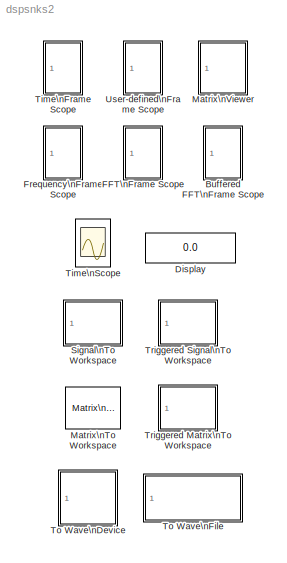
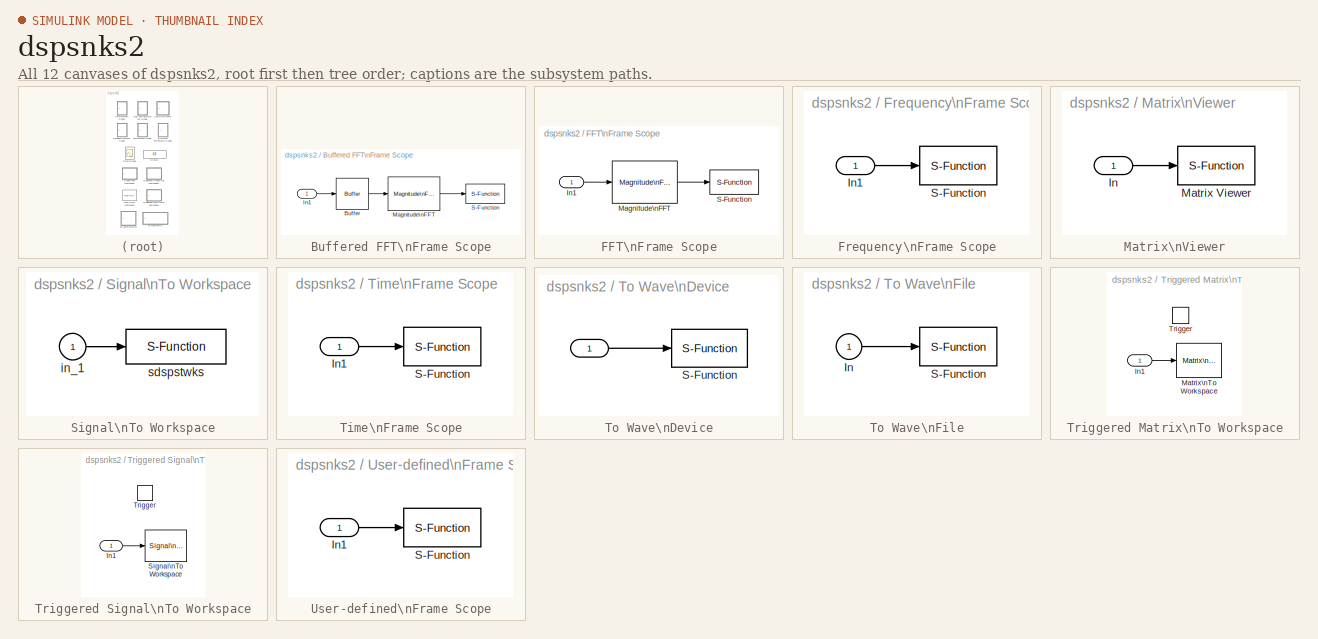
[diagram: thumbnail index - all 12 canvases of the model, root first then tree order]
MODEL dspsnks2
KIND library
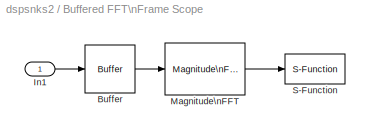
BLOCK [SubSystem] Buffered FFT\nFrame Scope
  CopyFcn = sdspfscope([],[],[],'BlockCopy');
  DeleteFcn = sdspfscope([],[],[],'BlockDelete');
  MaskCallbackString = |||dspblkbfftscope('dynamic','Domain');|||||||||dspblkbfftscope('dynamic','AxisParams');|||||||||dspblkbfftscope('dynamic','LineParams');||||
  MaskDescription = Buffer a non-frame based input, then compute and display the magnitude-squared FFT of each each frame of input data.
  MaskDisplay = plot(x,y); text(14,20,str);\n
  MaskEnableString = on,on,on,on,on,on,on,on,on,on,on,on,on,on,on,on,on,on,on,on,on,on,on,on,on,on
  MaskHelp = web(dspbhelp);
  MaskIconFrame = on
  MaskIconOpaque = on
  MaskIconRotate = none
  MaskIconUnits = autoscale
  MaskInitialization = [x,y,str] = dspblkbfftscope('icon');\ns = dspblkbfftscope('init',FFTlength,BufferSize,Overlap,Domain, XLabel, XUnits, XRange, XIncr, ...\nYLabel, YUnits,  HorizSpan, NChans, ...\nAxisParams, YMin,YMax,FigPos, ...\nAxisGrid, AxisZoom, FrameNumber, AxisLegend, Memory, ...\nLineParams, LineDisables, LineColors, LineStyles, LineMarkers);\n\n
  MaskPromptString = FFT length (-1 to inherit input width):|Buffer size:|Buffer overlap:|Input domain:|X-axis title:|Frequency units:|Frequency range:|Sample time of original time series (-1 if not zero-padded):|Y-axis title:|Amplitude scaling:|Time display span (number of frames):|Number of input channels:|Axis properties ...|Minimum Y-limit:|Maximum Y-limit:|Figure position:|Axis grid|Axis zoom|Frame number|Axis le...<+88ch>
  MaskSelfModifiable = on
  MaskStyleString = edit,edit,edit,popup(Time|Frequency|User-defined),edit,popup(Hertz|rad/sec),popup([0...Fs/2]|[-Fs/2...Fs/2]|[0...Fs]),edit,edit,popup(Magnitude|dB),edit,edit,checkbox,edit,edit,edit,checkbox,checkbox,checkbox,checkbox,checkbox,checkbox,edit,edit,edit,edit
  MaskTunableValueString = on,on,on,on,on,on,on,on,on,on,off,off,on,on,on,on,on,on,on,on,on,on,on,on,on,on
  MaskType = Buffered FFT Frame Scope
  MaskValueString = 128|128|64|Frequency|Samples|Hertz|[0...Fs/2]|-1|Magnitude, dB|dB|1|1|off|-10|10|get(0,'defaultfigureposition')|on|on|off|off|off|off||||
  MaskVariables = FFTlength=@1;BufferSize=@2;Overlap=@3;Domain=@4;XLabel=&5;XUnits=@6;XRange=@7;XIncr=@8;YLabel=&9;YUnits=@10;HorizSpan=@11;NChans=@12;AxisParams=&13;YMin=@14;YMax=@15;FigPos=@16;AxisGrid=&17;AxisZoom=&18;FrameNumber=&19;AxisLegend=&20;Memory=&21;LineParams=&22;LineDisables=&23;LineColors=&24;LineStyles=&25;LineMarkers=&26;
  MaskVisibilityString = on,on,on,off,off,on,on,on,on,on,off,on,on,off,off,off,off,off,off,off,off,on,off,off,off,off
  NameChangeFcn = sdspfscope([],[],[],'NameChange');
  Ports = [1, 0, 0, 0, 0]
  ShowPortLabels = on
BLOCK [Reference] Buffered FFT\nFrame Scope/Buffer  REF=dspbuff2/Buffer
  N = BufferSize
  Ports = [1, 1, 0, 0, 0]
  SourceBlock = dspbuff2/Buffer
  SourceType = Buffer
  V = Overlap
  ic = 0
BLOCK [Inport] Buffered FFT\nFrame Scope/In1
  DataType = auto
  Interpolate = on
  Port = 1
  PortWidth = -1
  SampleTime = -1
  SignalType = auto
BLOCK [Reference] Buffered FFT\nFrame Scope/Magnitude\nFFT  REF=dspspect2/Magnitude\nFFT
  NChans = NChans
  Ports = [1, 1, 0, 0, 0]
  SourceBlock = dspspect2/Magnitude\nFFT
  SourceType = Magnitude FFT
  fftsize = FFTlength
BLOCK [S-Function] Buffered FFT\nFrame Scope/S-Function
  FunctionName = sdspfscope
  Parameters = s
  PortCounts = []
  Ports = [1, 0, 0, 0, 0]
  SFunctionModules = ''
BLOCK [Display] Display
  Decimation = 1
  Floating = off
  Format = short
  Ports = [1, 0, 0, 0, 0]
  SampleTime = -1
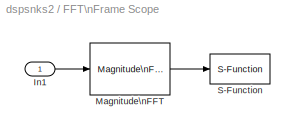
BLOCK [SubSystem] FFT\nFrame Scope
  CopyFcn = sdspfscope([],[],[],'BlockCopy');
  DeleteFcn = sdspfscope([],[],[],'BlockDelete');
  MaskCallbackString = |dspblkfftscope('dynamic','Domain');|||||||||dspblkfftscope('dynamic','AxisParams');|||||||||dspblkfftscope('dynamic','LineParams');||||
  MaskDescription = Compute and display the magnitude-squared FFT of a frame of time-domain input data.
  MaskDisplay = plot(x,y); text(14,20,str);\n
  MaskEnableString = on,on,on,on,on,on,on,on,on,on,on,on,on,on,on,on,on,on,on,on,on,on,on,on
  MaskHelp = web(dspbhelp);
  MaskIconFrame = on
  MaskIconOpaque = on
  MaskIconRotate = none
  MaskIconUnits = autoscale
  MaskInitialization = [x,y,str] = dspblkfftscope('icon');\ns = dspblkfftscope('init',FFTlength,Domain, XLabel, XUnits, XRange, XIncr, ...\nYLabel, YUnits,  HorizSpan, NChans, ...\nAxisParams, YMin,YMax,FigPos, ...\nAxisGrid, AxisZoom, FrameNumber, AxisLegend, Memory, ...\nLineParams, LineDisables, LineColors, LineStyles, LineMarkers);\n\n
  MaskPromptString = FFT length (-1 to inherit input width):|Input domain:|X-axis title:|Frequency units:|Frequency range:|Sample time of original time series (-1 if not zero-padded):|Y-axis title:|Amplitude scaling:|Time display span (number of frames):|Number of input channels:|Axis properties ...|Minimum Y-limit:|Maximum Y-limit:|Figure position:|Axis grid|Axis zoom|Frame number|Axis legend|Memory|Line properties ....<+61ch>
  MaskSelfModifiable = on
  MaskStyleString = edit,popup(Time|Frequency|User-defined),edit,popup(Hertz|rad/sec),popup([0...Fs/2]|[-Fs/2...Fs/2]|[0...Fs]),edit,edit,popup(Magnitude|dB),edit,edit,checkbox,edit,edit,edit,checkbox,checkbox,checkbox,checkbox,checkbox,checkbox,edit,edit,edit,edit
  MaskTunableValueString = on,on,on,on,on,on,on,on,off,off,on,on,on,on,on,on,on,on,on,on,on,on,on,on
  MaskType = FFT Frame Scope
  MaskValueString = 128|Frequency|Samples|Hertz|[0...Fs/2]|-1|Magnitude, dB|dB|1|1|off|-10|10|get(0,'defaultfigureposition')|on|on|off|off|off|off||||
  MaskVariables = FFTlength=@1;Domain=@2;XLabel=&3;XUnits=@4;XRange=@5;XIncr=@6;YLabel=&7;YUnits=@8;HorizSpan=@9;NChans=@10;AxisParams=&11;YMin=@12;YMax=@13;FigPos=@14;AxisGrid=&15;AxisZoom=&16;FrameNumber=&17;AxisLegend=&18;Memory=&19;LineParams=&20;LineDisables=&21;LineColors=&22;LineStyles=&23;LineMarkers=&24;
  MaskVisibilityString = on,off,off,on,on,on,on,on,off,on,on,off,off,off,off,off,off,off,off,on,off,off,off,off
  NameChangeFcn = sdspfscope([],[],[],'NameChange');
  Ports = [1, 0, 0, 0, 0]
  ShowPortLabels = on
BLOCK [Inport] FFT\nFrame Scope/In1
  DataType = auto
  Interpolate = on
  Port = 1
  PortWidth = -1
  SampleTime = -1
  SignalType = auto
BLOCK [Reference] FFT\nFrame Scope/Magnitude\nFFT  REF=dspspect2/Magnitude\nFFT
  NChans = NChans
  Ports = [1, 1, 0, 0, 0]
  SourceBlock = dspspect2/Magnitude\nFFT
  SourceType = Magnitude FFT
  fftsize = FFTlength
BLOCK [S-Function] FFT\nFrame Scope/S-Function
  FunctionName = sdspfscope
  Parameters = s
  PortCounts = []
  Ports = [1, 0, 0, 0, 0]
  SFunctionModules = ''
BLOCK [SubSystem] Frequency\nFrame Scope
  CopyFcn = sdspfscope([],[],[],'BlockCopy');
  DeleteFcn = sdspfscope([],[],[],'BlockDelete');
  MaskCallbackString = dspblkfscope('dynamic','Domain');|||||||||dspblkfscope('dynamic','AxisParams');|||||||||dspblkfscope('dynamic','LineParams');||||
  MaskDescription = Display one or more frequency domain data sets.  Data should come from an FFT block, or from frequency-domain sources with equivalent data organization.
  MaskDisplay = plot(x,y); text(14,20,str);\n
  MaskEnableString = on,on,on,on,on,on,on,on,on,on,on,on,on,on,on,on,on,on,on,on,on,on,on
  MaskHelp = web(dspbhelp);
  MaskIconFrame = on
  MaskIconOpaque = on
  MaskIconRotate = none
  MaskIconUnits = autoscale
  MaskInitialization = [x,y,str] = dspblkfscope('icon');\ns = dspblkfscope('init',Domain, XLabel, XUnits, XRange, XIncr, ...\nYLabel, YUnits,  HorizSpan, NChans, ...\nAxisParams, YMin,YMax,FigPos, ...\nAxisGrid, AxisZoom, FrameNumber, AxisLegend, Memory, ...\nLineParams, LineDisables, LineColors, LineStyles, LineMarkers);\n\n  <repeated x3 — deduplicated; at blocks: Frequency\nFrame Scope, Time\nFrame Scope, User-defined\nFrame Scope>
  MaskPromptString = Input domain:|X-axis title:|Frequency units:|Frequency range:|Sample time of original time series (-1 if not zero-padded):|Y-axis title:|Amplitude scaling:|Time display span (number of frames):|Number of input channels:|Axis properties ...|Minimum Y-limit:|Maximum Y-limit:|Figure position:|Axis grid|Axis zoom|Frame number|Axis legend|Memory|Line properties ...|Line visibilities:|Line colors:|Line ...<+21ch>
  MaskSelfModifiable = on
  MaskStyleString = popup(Time|Frequency|User-defined),edit,popup(Hertz|rad/sec),popup([0...Fs/2]|[-Fs/2...Fs/2]|[0...Fs]),edit,edit,popup(Magnitude|dB),edit,edit,checkbox,edit,edit,edit,checkbox,checkbox,checkbox,checkbox,checkbox,checkbox,edit,edit,edit,edit  <repeated x3 — deduplicated; at blocks: Frequency\nFrame Scope, Time\nFrame Scope, User-defined\nFrame Scope>
  MaskTunableValueString = on,on,on,on,on,on,on,off,off,on,on,on,on,on,on,on,on,on,on,on,on,on,on
  MaskType = Frequency Frame Scope
  MaskValueString = Frequency|Samples|Hertz|[0...Fs/2]|-1|Magnitude, dB|dB|1|1|off|-10|10|get(0,'defaultfigureposition')|on|on|off|off|off|off||||
  MaskVariables = Domain=@1;XLabel=&2;XUnits=@3;XRange=@4;XIncr=@5;YLabel=&6;YUnits=@7;HorizSpan=@8;NChans=@9;AxisParams=&10;YMin=@11;YMax=@12;FigPos=@13;AxisGrid=&14;AxisZoom=&15;FrameNumber=&16;AxisLegend=&17;Memory=&18;LineParams=&19;LineDisables=&20;LineColors=&21;LineStyles=&22;LineMarkers=&23;  <repeated x3 — deduplicated; at blocks: Frequency\nFrame Scope, Time\nFrame Scope, User-defined\nFrame Scope>
  MaskVisibilityString = off,off,on,on,on,on,on,off,on,on,off,off,off,off,off,off,off,off,on,off,off,off,off
  NameChangeFcn = sdspfscope([],[],[],'NameChange');
  Ports = [1, 0, 0, 0, 0]
  ShowPortLabels = on
BLOCK [Inport] Frequency\nFrame Scope/In1
  DataType = auto
  Interpolate = on
  Port = 1
  PortWidth = -1
  SampleTime = -1
  SignalType = auto
BLOCK [S-Function] Frequency\nFrame Scope/S-Function
  FunctionName = sdspfscope
  Parameters = s
  PortCounts = []
  Ports = [1, 0, 0, 0, 0]
  SFunctionModules = ''
BLOCK [Reference] Matrix\nTo Workspace  REF=dspmtrx2/Matrix\nTo Workspace
  Ports = [1, 0, 0, 0, 0]
  SourceBlock = dspmtrx2/Matrix\nTo Workspace
  SourceType = Matrix To Workspace
  deci = 1
  matname = yout
  matsiz = [3 3]
  maxrows = 1000
BLOCK [SubSystem] Matrix\nViewer
  CopyFcn = sdspmview([],[],[],'BlockCopy');
  DeleteFcn = sdspmview([],[],[],'BlockDelete');
  MaskCallbackString = dspblkmview('dynamic','ImageParams');||||||dspblkmview('dynamic','AxisParams');||||||
  MaskDescription = Display a matrix as an image, scaling the colormap to the specified input data range.  Colormap must be an Nx3 matrix of RGB values.  Type \"help graph3d\" at the MATLAB prompt for a list of predefined colormaps.
  MaskDisplay = disp('Matrix\\nViewer');\n
  MaskEnableString = on,on,on,on,on,on,on,on,on,on,on,on,on
  MaskHelp = web(dspbhelp);
  MaskIconFrame = on
  MaskIconOpaque = on
  MaskIconRotate = none
  MaskIconUnits = autoscale
  MaskInitialization = s = dspblkmview('init', ...\n       ImageParams, CMap, YMin, YMax, NumCols, AxisColorbar,  ...\n       AxisParams,  AxisOrigin, XLabel,  YLabel,  ZLabel, FigPos, AxisZoom);\n
  MaskPromptString = Image properties ...|Colormap matrix:|Minimum input value:|Maximum input value:|Number of columns:|Display colorbar|Axis properties ...|Axis origin:|X-axis title:|Y-axis title:|Colorbar title:|Figure position:|Axis zoom
  MaskSelfModifiable = on
  MaskStyleString = checkbox,edit,edit,edit,edit,checkbox,checkbox,popup(Upper left corner|Lower left corner),edit,edit,edit,edit,checkbox
  MaskTunableValueString = on,on,on,on,off,on,on,on,on,on,on,on,on
  MaskType = Matrix Viewer
  MaskValueString = off|hot(256)|-1.0|1.0|10|on|off|Upper left corner|X-axis|Y-axis|Z-axis|get(0,'defaultfigureposition')|off
  MaskVariables = ImageParams=&1;CMap=@2;YMin=@3;YMax=@4;NumCols=@5;AxisColorbar=&6;AxisParams=&7;AxisOrigin=&8;XLabel=&9;YLabel=&10;ZLabel=&11;FigPos=@12;AxisZoom=&13;
  MaskVisibilityString = on,off,off,off,off,off,on,off,off,off,off,off,off
  NameChangeFcn = sdspmview([],[],[],'NameChange');
  Ports = [1, 0, 0, 0, 0]
  ShowPortLabels = on
BLOCK [Inport] Matrix\nViewer/In
  DataType = auto
  Interpolate = on
  Port = 1
  PortWidth = -1
  SampleTime = -1
  SignalType = auto
BLOCK [S-Function] Matrix\nViewer/Matrix Viewer
  FunctionName = sdspmview
  Parameters = s
  PortCounts = []
  Ports = [1, 0, 0, 0, 0]
  SFunctionModules = ''
BLOCK [SubSystem] Signal\nTo Workspace
  MaskCallbackString = |||dspblkstw|
  MaskDescription = Write input to specified matrix in the workspace.  The matrix has one column per input element and one row per time step.  For frame-based operation, note that each simulation step may represent multiple time steps.  Data is not available until the simulation is stopped or paused.\n
  MaskDisplay = disp(VariableName)
  MaskEnableString = on,on,on,on,off
  MaskHelp = web(dspbhelp);
  MaskIconFrame = on
  MaskIconOpaque = on
  MaskIconRotate = none
  MaskIconUnits = autoscale
  MaskInitialization = \n
  MaskPromptString = Variable name:|Maximum number of inputs to record:|Decimation:|Frame-based|Number of channels:
  MaskStyleString = edit,edit,edit,checkbox,edit
  MaskTunableValueString = off,off,off,off,off
  MaskType = Signal To Workspace
  MaskValueString = yout|1000|1|off|1
  MaskVariables = VariableName=&1;Buffer=@2;Decimation=@3;FrameBased=@4;NumChans=@5;
  MaskVisibilityString = on,on,on,on,on
  Ports = [1, 0, 0, 0, 0]
  ShowPortLabels = on
BLOCK [Inport] Signal\nTo Workspace/in_1
  DataType = auto
  Interpolate = on
  Port = 1
  PortWidth = -1
  SampleTime = -1
  SignalType = auto
BLOCK [S-Function] Signal\nTo Workspace/sdspstwks
  FunctionName = sdspstwks
  Parameters = VariableName,Buffer,Decimation,FrameBased,NumChans
  PortCounts = []
  Ports = [1, 0, 0, 0, 0]
  SFunctionModules = ''
BLOCK [SubSystem] Time\nFrame Scope
  CopyFcn = sdspfscope([],[],[],'BlockCopy');
  DeleteFcn = sdspfscope([],[],[],'BlockDelete');
  MaskCallbackString = dspblkfscope('dynamic','Domain');|||||||||dspblkfscope('dynamic','AxisParams');|||||||||dspblkfscope('dynamic','LineParams');||||
  MaskDescription = Display a vector or matrix of data frames.  Data should come from frame-based, time-domain sources.\n
  MaskDisplay = plot(x,y); text(14,20,str);\n
  MaskEnableString = on,on,on,on,on,on,on,on,on,on,on,on,on,on,on,on,on,on,on,on,on,on,on
  MaskHelp = web(dspbhelp);
  MaskIconFrame = on
  MaskIconOpaque = on
  MaskIconRotate = none
  MaskIconUnits = autoscale
  MaskPromptString = Input domain:|X-axis title:|Frequency units:|Frequency range:|Sample time of original time series (-1 if not zero-padded):|Y-axis title:|Amplitude scaling:|Time display span (number of frames):|Number of input channels:|Axis properties ...|Minimum Y-limit:|Maximum Y-limit:|Figure position:|Axis grid|Axis zoom|Frame number|Axis legend|Memory|Line properties ...|Line visibilities:|Line colors:|Line ...<+21ch>
  MaskSelfModifiable = on
  MaskTunableValueString = on,on,on,on,on,on,on,off,off,on,on,on,on,on,on,on,on,on,on,on,on,on,on
  MaskType = Time Frame Scope
  MaskValueString = Time|Samples|Hertz|[0...Fs/2]|-1|Amplitude|dB|1|1|off|-10|10|get(0,'defaultfigureposition')|on|on|off|off|off|off||||
  MaskVisibilityString = off,off,off,off,off,on,off,on,on,on,off,off,off,off,off,off,off,off,on,off,off,off,off
  NameChangeFcn = sdspfscope([],[],[],'NameChange');
  Ports = [1, 0, 0, 0, 0]
  ShowPortLabels = on
BLOCK [Inport] Time\nFrame Scope/In1
  DataType = auto
  Interpolate = on
  Port = 1
  PortWidth = -1
  SampleTime = -1
  SignalType = auto
BLOCK [S-Function] Time\nFrame Scope/S-Function
  FunctionName = sdspfscope
  Parameters = s
  PortCounts = []
  Ports = [1, 0, 0, 0, 0]
  SFunctionModules = ''
BLOCK [Scope] Time\nScope
  DataFormat = Structure
  Decimation = 1
  Floating = off
  Grid = on
  LimitMaxRows = on
  MaxRows = 5000
  NumInputPorts = 1
  Ports = [1, 0, 0, 0, 0]
  SampleInput = off
  SampleTime = 0
  SaveName = ScopeData
  SaveToWorkspace = off
  TickLabels = OneTimeTick
  TimeRange = auto
  YMax = 5
  YMin = -5
  ZoomMode = on
BLOCK [SubSystem] To Wave\nDevice
  MaskCallbackString = ||||dspblkwao;|
  MaskDescription = Writes audio data samples to a standard Windows audio device in real time.  If audio glitches occur, increase Initial output delay (for glitches at startup) or Queue duration.  Only for Win95/98/NT.
  MaskDisplay = patch(x1,y1,[1 1 1]*.5);\npatch(x2,y2);\nplot(x,y); plot(x1,y1)
  MaskEnableString = on,on,on,on,on,off
  MaskHelp = web(dspbhelp);
  MaskIconFrame = on
  MaskIconOpaque = on
  MaskIconRotate = none
  MaskIconUnits = autoscale
  MaskInitialization = [x,y,x1,y1,x2,y2] = dspblkwao('icon');\n[bits_per_sample, numChannels, deviceID] = dspblkwao('init',userDeviceID);\n\n
  MaskPromptString = Sample width (bits):|Stereo|Queue duration (seconds):|Initial output delay (seconds):|Use default audio device|Audio device ID: (1=1st device, 2=2nd device, ...)
  MaskStyleString = popup(8|16),checkbox,edit,edit,checkbox,edit
  MaskTunableValueString = off,off,off,on,on,on
  MaskType = To Wave Device
  MaskValueString = 16|off|2|0.1|on|1
  MaskVariables = sampleWidthLit=&1;stereo=@2;bufDuration=@3;initDelay=@4;useDefaultDevice=@5;userDeviceID=@6;
  MaskVisibilityString = on,on,on,on,on,on
  Ports = [1, 0, 0, 0, 0]
  ShowPortLabels = on
BLOCK [Inport] To Wave\nDevice/ 
  DataType = auto
  Interpolate = on
  Port = 1
  PortWidth = -1
  SampleTime = -1
  SignalType = auto
BLOCK [S-Function] To Wave\nDevice/S-Function
  FunctionName = sdspwao
  Parameters = numChannels, bits_per_sample, bufDuration, initDelay, deviceID
  PortCounts = []
  Ports = [1, 0, 0, 0, 0]
  SFunctionModules = winmm.lib
BLOCK [SubSystem] To Wave\nFile
  MaskCallbackString = ||
  MaskDescription = Writes audio data samples to a standard Windows PCM format \".WAV\" audio file.  Only for Win95/98/NT.
  MaskDisplay = disp(filename)
  MaskEnableString = on,on,on
  MaskHelp = web(dspbhelp);
  MaskIconFrame = on
  MaskIconOpaque = on
  MaskIconRotate = none
  MaskIconUnits = autoscale
  MaskInitialization = col_major=1;\nnumChannels=1+stereo;\nbits_per_sample=str2num(sampleWidth);\nif ~strcmp(lower(filename(end-3:end)),'.wav'), filename=strcat(filename,'.wav');end\n\n
  MaskPromptString = File name:|Sample width (bits):|Stereo
  MaskStyleString = edit,popup(8|16),checkbox
  MaskTunableValueString = off,off,off
  MaskType = To Wave File
  MaskValueString = audio|16|off
  MaskVariables = filename=&1;sampleWidth=&2;stereo=@3;
  MaskVisibilityString = on,on,on
  Ports = [1, 0, 0, 0, 0]
  ShowPortLabels = on
BLOCK [Inport] To Wave\nFile/In
  DataType = auto
  Interpolate = on
  Port = 1
  PortWidth = -1
  SampleTime = -1
  SignalType = auto
BLOCK [S-Function] To Wave\nFile/S-Function
  FunctionName = sdspwafo
  Parameters = filename, bits_per_sample, numChannels
  PortCounts = []
  Ports = [1, 0, 0, 0, 0]
  SFunctionModules = winmm.lib
BLOCK [SubSystem] Triggered Matrix\nTo Workspace
  MaskCallbackString = ||||
  MaskDescription = Write a matrix signal into the workspace, storing the resulting time-sequence as a 3-D array with time running along the third dimension.  Data is not available until the simulation is stopped or paused.
  MaskDisplay = disp(matname);\n
  MaskEnableString = on,on,on,on,on
  MaskHelp = web(dspbhelp);\n
  MaskIconFrame = on
  MaskIconOpaque = off
  MaskIconRotate = none
  MaskIconUnits = autoscale
  MaskInitialization = child=['Matrix' sprintf('\\n') 'To Workspace'];\nswitch TriggerType\ncase 1, s='rising';\ncase 2, s='falling';\ncase 3, s='either';\nend\nif ~strcmp(get_param([gcb '/Trigger'],'TriggerType'),s)\n     set_param([gcb '/Trigger'],'TriggerType',s);\nend;\nif ~strcmp(get_param([gcb '/' child],'matname'),matname)\n     set_param([gcb '/' child],'matname',matname);\nend;
  MaskPromptString = Trigger type:|Variable name:|Maximum number of matrices:|Decimation:|Matrix size:
  MaskSelfModifiable = on
  MaskStyleString = popup(Rising edge|Falling edge|Either edge),edit,edit,edit,edit
  MaskTunableValueString = off,off,on,on,on
  MaskType = Triggered Matrix To Workspace
  MaskValueString = Rising edge|yout|1000|1|[3 3]
  MaskVariables = TriggerType=@1;matname=&2;maxrows=@3;deci=@4;matsiz=@5;
  MaskVisibilityString = on,on,on,on,on
  Ports = [1, 0, 0, 1, 0]
  ShowPortLabels = on
BLOCK [Inport] Triggered Matrix\nTo Workspace/In1
  DataType = auto
  Interpolate = on
  Port = 1
  PortWidth = -1
  SampleTime = -1
  SignalType = auto
BLOCK [Reference] Triggered Matrix\nTo Workspace/Matrix\nTo Workspace  REF=dspmtrx2/Matrix\nTo Workspace
  Ports = [1, 0, 0, 0, 0]
  SourceBlock = dspmtrx2/Matrix\nTo Workspace
  SourceType = Matrix To Workspace
  deci = deci
  matname = yout
  matsiz = matsiz
  maxrows = maxrows
BLOCK [TriggerPort] Triggered Matrix\nTo Workspace/Trigger
  OutputDataType = auto
  Ports = [0, 0, 0, 0, 0]
  ShowOutputPort = off
  TriggerType = rising
BLOCK [SubSystem] Triggered Signal\nTo Workspace
  MaskCallbackString = ||||dspblktstw('dynamic');|
  MaskDescription = Write input to specified matrix in the workspace when trigger is received.  The matrix has one column per input element and one row per time step.  For frame-based operation, note that each simulation step may represent multiple time steps.  Data is not available until the simulation is stopped or paused.\n
  MaskDisplay = disp(VariableName);\n
  MaskEnableString = on,on,on,on,on,off
  MaskHelp = web(dspbhelp);\n
  MaskIconFrame = on
  MaskIconOpaque = off
  MaskIconRotate = none
  MaskIconUnits = autoscale
  MaskInitialization = dspblktstw('init',TriggerType, VariableName, Buffer, Decimation, FrameBased, NumChans);
  MaskPromptString = Trigger type:|Variable name:|Maximum number of rows:|Decimation:|Frame-based|Number of channels:
  MaskSelfModifiable = on
  MaskStyleString = popup(Rising edge|Falling edge|Either edge),edit,edit,edit,checkbox,edit
  MaskTunableValueString = on,off,off,off,off,off
  MaskType = Triggered Signal To Workspace
  MaskValueString = Rising edge|yout|1000|1|off|1
  MaskVariables = TriggerType=@1;VariableName=&2;Buffer=@3;Decimation=@4;FrameBased=&5;NumChans=@6;
  MaskVisibilityString = on,on,on,on,on,on
  Ports = [1, 0, 0, 1, 0]
  ShowPortLabels = on
BLOCK [Inport] Triggered Signal\nTo Workspace/In1
  DataType = auto
  Interpolate = on
  Port = 1
  PortWidth = -1
  SampleTime = -1
  SignalType = auto
BLOCK [Reference] Triggered Signal\nTo Workspace/Signal\nTo Workspace  REF=dspsnks2/Signal\nTo Workspace
  Buffer = Buffer
  Decimation = Decimation
  FrameBased = off
  NumChans = NumChans
  Ports = [1, 0, 0, 0, 0]
  SourceBlock = dspsnks2/Signal\nTo Workspace
  SourceType = Signal To Workspace
  VariableName = yout
BLOCK [TriggerPort] Triggered Signal\nTo Workspace/Trigger
  OutputDataType = auto
  Ports = [0, 0, 0, 0, 0]
  ShowOutputPort = off
  TriggerType = rising
BLOCK [SubSystem] User-defined\nFrame Scope
  CopyFcn = sdspfscope([],[],[],'BlockCopy');
  DeleteFcn = sdspfscope([],[],[],'BlockDelete');
  MaskCallbackString = dspblkfscope('dynamic','Domain');|||||||||dspblkfscope('dynamic','AxisParams');|||||||||dspblkfscope('dynamic','LineParams');||||
  MaskDescription = Display a vector or matrix of data frames.  Data should be from frame-based, user-defined data sources.\n
  MaskDisplay = plot(x,y); text(14,20,str);\n
  MaskEnableString = on,on,on,on,on,on,on,on,on,on,on,on,on,on,on,on,on,on,on,on,on,on,on
  MaskHelp = web(dspbhelp);
  MaskIconFrame = on
  MaskIconOpaque = on
  MaskIconRotate = none
  MaskIconUnits = autoscale
  MaskPromptString = Input domain:|X-axis title:|Frequency units:|Frequency range:|Increment per sample in input frame:|Y-axis title:|Amplitude scaling:|Horizontal display span (number of frames):|Number of input channels:|Axis properties ...|Minimum Y-limit:|Maximum Y-limit:|Figure position:|Axis grid|Axis zoom|Frame number|Axis legend|Memory|Line properties ...|Line visibilities:|Line colors:|Line styles:|Line marke...<+3ch>
  MaskSelfModifiable = on
  MaskTunableValueString = on,on,on,on,on,on,on,off,off,on,on,on,on,on,on,on,on,on,on,on,on,on,on
  MaskType = User-defined Frame Scope
  MaskValueString = User-defined|Samples|Hertz|[0...Fs/2]|-1|Magnitude, dB|dB|1|1|off|-10|10|get(0,'defaultfigureposition')|on|on|off|off|off|off||||
  MaskVisibilityString = off,on,off,off,on,on,off,on,on,on,off,off,off,off,off,off,off,off,on,off,off,off,off
  NameChangeFcn = sdspfscope([],[],[],'NameChange');
  Ports = [1, 0, 0, 0, 0]
  ShowPortLabels = on
BLOCK [Inport] User-defined\nFrame Scope/In1
  DataType = auto
  Interpolate = on
  Port = 1
  PortWidth = -1
  SampleTime = -1
  SignalType = auto
BLOCK [S-Function] User-defined\nFrame Scope/S-Function
  FunctionName = sdspfscope
  Parameters = s
  PortCounts = []
  Ports = [1, 0, 0, 0, 0]
  SFunctionModules = ''
LINE Buffered FFT\nFrame Scope/Buffer:1 -> Buffered FFT\nFrame Scope/Magnitude\nFFT:1
LINE Buffered FFT\nFrame Scope/In1:1 -> Buffered FFT\nFrame Scope/Buffer:1
LINE Buffered FFT\nFrame Scope/Magnitude\nFFT:1 -> Buffered FFT\nFrame Scope/S-Function:1
LINE FFT\nFrame Scope/In1:1 -> FFT\nFrame Scope/Magnitude\nFFT:1
LINE FFT\nFrame Scope/Magnitude\nFFT:1 -> FFT\nFrame Scope/S-Function:1
LINE Frequency\nFrame Scope/In1:1 -> Frequency\nFrame Scope/S-Function:1
LINE Matrix\nViewer/In:1 -> Matrix\nViewer/Matrix Viewer:1
LINE Signal\nTo Workspace/in_1:1 -> Signal\nTo Workspace/sdspstwks:1
LINE Time\nFrame Scope/In1:1 -> Time\nFrame Scope/S-Function:1
LINE To Wave\nDevice/ :1 -> To Wave\nDevice/S-Function:1
LINE To Wave\nFile/In:1 -> To Wave\nFile/S-Function:1
LINE Triggered Matrix\nTo Workspace/In1:1 -> Triggered Matrix\nTo Workspace/Matrix\nTo Workspace:1
LINE Triggered Signal\nTo Workspace/In1:1 -> Triggered Signal\nTo Workspace/Signal\nTo Workspace:1
LINE User-defined\nFrame Scope/In1:1 -> User-defined\nFrame Scope/S-Function:1
